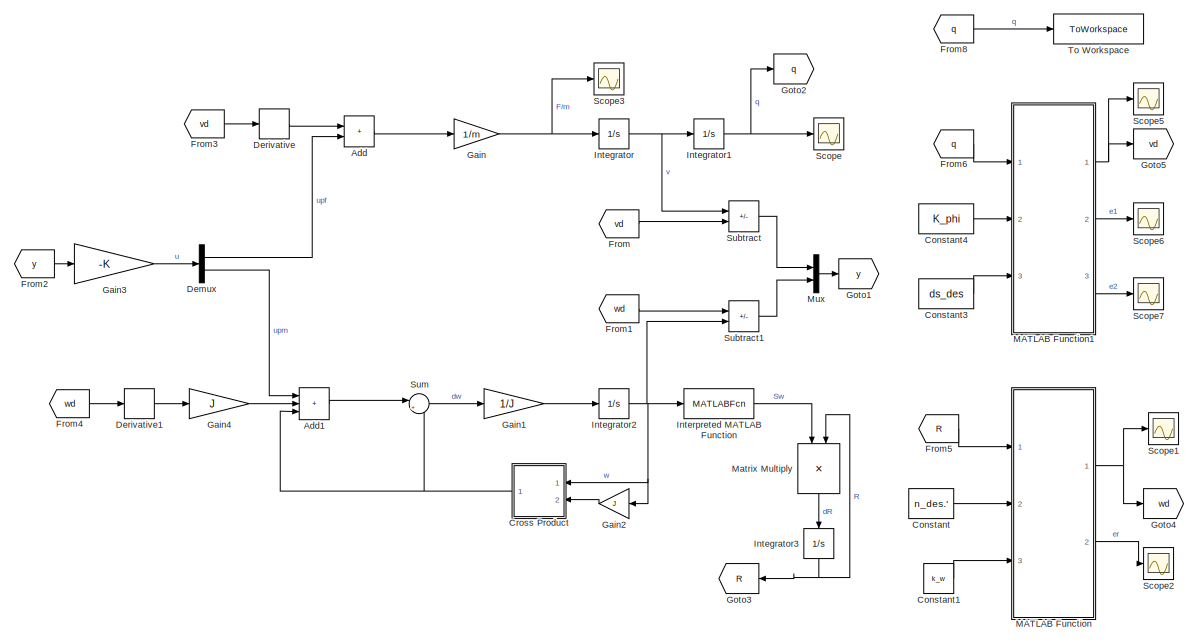
[diagram: root canvas - part 1/2, full width, top band]
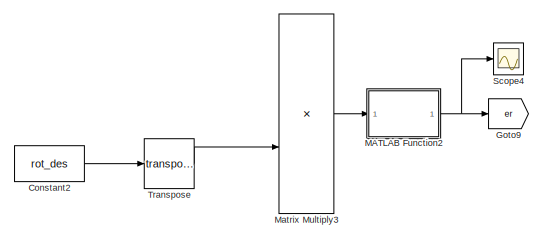
[diagram: root canvas - part 2/2, bottom center region]
MODEL slx_d8f19f1c8894
KIND model
CONFIG AbsTol = auto
CONFIG EnableMultiTasking = off
CONFIG FixedStep = auto
CONFIG MaxStep = auto
CONFIG MinStep = auto
CONFIG RelTol = 1e-3
CONFIG SampleTimeConstraint = Unconstrained
CONFIG SolverName = VariableStepAuto
CONFIG StartTime = 0.0
CONFIG StopTime = 1000
BLOCK [Sum] Add
  IconShape = rectangular
  Ports = [2, 1]
BLOCK [Sum] Add1
  IconShape = rectangular
  Inputs = +++
  Ports = [3, 1]
BLOCK [Constant] Constant
  Value = n_des.'
  VectorParams1D = off
BLOCK [Constant] Constant1
  Value = k_w
BLOCK [Constant] Constant2
  Commented = on
  Value = rot_des
  VectorParams1D = off
BLOCK [Constant] Constant3
  Value = ds_des
BLOCK [Constant] Constant4
  Value = K_phi
  VectorParams1D = off
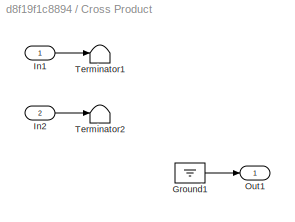
BLOCK [SubSystem] Cross Product
  Description = Replaced Block
  Ports = [2, 1]
BLOCK [Ground] Cross Product/Ground1
BLOCK [Inport] Cross Product/In1
BLOCK [Inport] Cross Product/In2
  Port = 2
BLOCK [Outport] Cross Product/Out1
BLOCK [Terminator] Cross Product/Terminator1
BLOCK [Terminator] Cross Product/Terminator2
BLOCK [Demux] Demux
  Outputs = 2
  Ports = [1, 2]
BLOCK [Derivative] Derivative
  CoefficientInTFapproximation = 10
BLOCK [Derivative] Derivative1
BLOCK [From] From
  GotoTag = vd
BLOCK [From] From1
  GotoTag = wd
BLOCK [From] From2
  GotoTag = y
BLOCK [From] From3
  GotoTag = vd
BLOCK [From] From4
  GotoTag = wd
BLOCK [From] From5
  GotoTag = R
BLOCK [From] From6
  GotoTag = q
BLOCK [From] From8
  GotoTag = q
BLOCK [Gain] Gain
  Gain = 1/m
BLOCK [Gain] Gain1
  Gain = 1/J
BLOCK [Gain] Gain2
  Gain = J
BLOCK [Gain] Gain3
  Gain = -K
  Multiplication = Matrix(K*u)
BLOCK [Gain] Gain4
  Gain = J
BLOCK [Goto] Goto1
  GotoTag = y
BLOCK [Goto] Goto2
  GotoTag = q
BLOCK [Goto] Goto3
  GotoTag = R
  NameLocation = top
BLOCK [Goto] Goto4
  GotoTag = wd
BLOCK [Goto] Goto5
  GotoTag = vd
BLOCK [Goto] Goto9
  Commented = on
  GotoTag = er
BLOCK [Integrator] Integrator
  InitialCondition = [0;0;0]
  Ports = [1, 1]
BLOCK [Integrator] Integrator1
  InitialCondition = pos_init
  Ports = [1, 1]
BLOCK [Integrator] Integrator2
  InitialCondition = [0;0;0]
  Ports = [1, 1]
BLOCK [Integrator] Integrator3
  InitialCondition = rot_init
  NameLocation = left
  Ports = [1, 1]
BLOCK [MATLABFcn] Interpreted MATLAB Function
  MATLABFcn = [0,u(3),-u(2); -u(3), 0, u(1); u(2),-u(1),0]
  Output1D = off
  Ports = [1, 1]
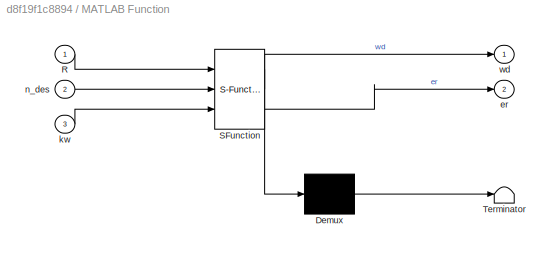
BLOCK [SubSystem] MATLAB Function
  ErrorFcn = Stateflow.Translate.translate
  PermitHierarchicalResolution = ExplicitOnly
  Ports = [3, 2]
  SFBlockType = MATLAB Function
  TreatAsAtomicUnit = on
BLOCK [Demux] MATLAB Function/ Demux 
  Outputs = 1
  Ports = [1, 1]
BLOCK [S-Function] MATLAB Function/ SFunction 
  EnableBusSupport = on
  FunctionName = sf_sfun
  PortCounts = [3 3]
  Ports = [3, 3]
  SFcnIsStateOwnerBlock = off
  SFunctionDeploymentMode = off
  Tag = Stateflow S-Function 2
BLOCK [Terminator] MATLAB Function/ Terminator 
BLOCK [Inport] MATLAB Function/R
BLOCK [Outport] MATLAB Function/er
  Port = 2
BLOCK [Inport] MATLAB Function/kw
  Port = 3
BLOCK [Inport] MATLAB Function/n_des
  Port = 2
BLOCK [Outport] MATLAB Function/wd
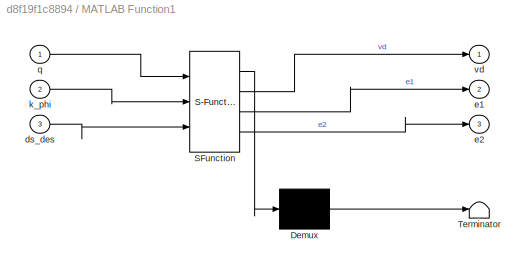
BLOCK [SubSystem] MATLAB Function1
  ErrorFcn = Stateflow.Translate.translate
  PermitHierarchicalResolution = ExplicitOnly
  Ports = [3, 3]
  SFBlockType = MATLAB Function
  TreatAsAtomicUnit = on
BLOCK [Demux] MATLAB Function1/ Demux 
  Outputs = 1
  Ports = [1, 1]
BLOCK [S-Function] MATLAB Function1/ SFunction 
  EnableBusSupport = on
  FunctionName = sf_sfun
  PortCounts = [3 4]
  Ports = [3, 4]
  SFcnIsStateOwnerBlock = off
  SFunctionDeploymentMode = off
  Tag = Stateflow S-Function 1
BLOCK [Terminator] MATLAB Function1/ Terminator 
BLOCK [Inport] MATLAB Function1/ds_des
  Port = 3
BLOCK [Outport] MATLAB Function1/e1
  Port = 2
BLOCK [Outport] MATLAB Function1/e2
  Port = 3
BLOCK [Inport] MATLAB Function1/k_phi
  Port = 2
BLOCK [Inport] MATLAB Function1/q
BLOCK [Outport] MATLAB Function1/vd
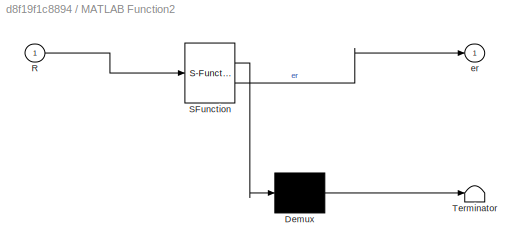
BLOCK [SubSystem] MATLAB Function2
  Commented = on
  ErrorFcn = Stateflow.Translate.translate
  PermitHierarchicalResolution = ExplicitOnly
  Ports = [1, 1]
  SFBlockType = MATLAB Function
  TreatAsAtomicUnit = on
BLOCK [Demux] MATLAB Function2/ Demux 
  Outputs = 1
  Ports = [1, 1]
BLOCK [S-Function] MATLAB Function2/ SFunction 
  EnableBusSupport = on
  FunctionName = sf_sfun
  PortCounts = [1 2]
  Ports = [1, 2]
  SFcnIsStateOwnerBlock = off
  SFunctionDeploymentMode = off
  Tag = Stateflow S-Function 3
BLOCK [Terminator] MATLAB Function2/ Terminator 
BLOCK [Inport] MATLAB Function2/R
BLOCK [Outport] MATLAB Function2/er
BLOCK [Product] Matrix Multiply
  Multiplication = Matrix(*)
  NameLocation = left
  Ports = [2, 1]
BLOCK [Product] Matrix Multiply3
  Commented = on
  Multiplication = Matrix(*)
  Ports = [2, 1]
BLOCK [Mux] Mux
  DisplayOption = bar
  Inputs = 2
  Ports = [2, 1]
BLOCK [Scope] Scope
  Floating = off
  NumInputPorts = 1
  Ports = [1]
  ScopeSpecificationString = Simulink.scopes.TimeScopeBlockCfg('CurrentConfiguration', extmgr.ConfigurationSet(extmgr.Configuration('Core','General UI',true),extmgr.Configuration('Core','Source UI',true),extmgr.Configuration('Sources','WiredSimulink',true),extmgr.Configuration('Visuals','Time Domain',true,'SerializedDisplays',{struct('MinYLimReal','-26.31648','MaxYLimReal','36.33131','YLabelReal','','MinYLimMag','0.00000','Ma...<+1368ch>
BLOCK [Scope] Scope1
  Floating = off
  NumInputPorts = 1
  Ports = [1]
  ScopeSpecificationString = Simulink.scopes.TimeScopeBlockCfg('CurrentConfiguration', extmgr.ConfigurationSet(extmgr.Configuration('Core','General UI',true),extmgr.Configuration('Core','Source UI',true),extmgr.Configuration('Sources','WiredSimulink',true,'DataLoggingVariableName','ScopeData1'),extmgr.Configuration('Visuals','Time Domain',true,'SerializedDisplays',{struct('MinYLimReal','-0.91506','MaxYLimReal','0.91506','YLab...<+1455ch>
BLOCK [Scope] Scope2
  Floating = off
  NumInputPorts = 1
  Ports = [1]
  ScopeSpecificationString = Simulink.scopes.TimeScopeBlockCfg('CurrentConfiguration', extmgr.ConfigurationSet(extmgr.Configuration('Core','General UI',true),extmgr.Configuration('Core','Source UI',true),extmgr.Configuration('Sources','WiredSimulink',true,'DataLoggingVariableName','ScopeData2'),extmgr.Configuration('Visuals','Time Domain',true,'SerializedDisplays',{struct('MinYLimReal','-0.04043','MaxYLimReal','0.4741','YLabe...<+1385ch>
BLOCK [Scope] Scope3
  Floating = off
  NumInputPorts = 1
  Ports = [1]
  ScopeSpecificationString = Simulink.scopes.TimeScopeBlockCfg('CurrentConfiguration', extmgr.ConfigurationSet(extmgr.Configuration('Core','General UI',true),extmgr.Configuration('Core','Source UI',true),extmgr.Configuration('Sources','WiredSimulink',true,'DataLoggingVariableName','ScopeData3'),extmgr.Configuration('Visuals','Time Domain',true,'SerializedDisplays',{struct('MinYLimReal','-3387.23953','MaxYLimReal','1763.81974'...<+1452ch>
BLOCK [Scope] Scope4
  Commented = on
  Floating = off
  NumInputPorts = 1
  Ports = [1]
  ScopeSpecificationString = Simulink.scopes.TimeScopeBlockCfg('CurrentConfiguration', extmgr.ConfigurationSet(extmgr.Configuration('Core','General UI',true),extmgr.Configuration('Core','Source UI',true),extmgr.Configuration('Sources','WiredSimulink',true,'DataLoggingVariableName','ScopeData4'),extmgr.Configuration('Visuals','Time Domain',true,'SerializedDisplays',{struct('MinYLimReal','-0.92171','MaxYLimReal','0.47612','YLab...<+1490ch>
BLOCK [Scope] Scope5
  Floating = off
  NumInputPorts = 1
  Ports = [1]
  ScopeSpecificationString = Simulink.scopes.TimeScopeBlockCfg('CurrentConfiguration', extmgr.ConfigurationSet(extmgr.Configuration('Core','General UI',true),extmgr.Configuration('Core','Source UI',true),extmgr.Configuration('Sources','WiredSimulink',true,'DataLoggingVariableName','ScopeData5'),extmgr.Configuration('Visuals','Time Domain',true,'SerializedDisplays',{struct('MinYLimReal','-6738.08515','MaxYLimReal','3465.96394'...<+1480ch>
BLOCK [Scope] Scope6
  Floating = off
  NumInputPorts = 1
  Ports = [1]
  ScopeSpecificationString = Simulink.scopes.TimeScopeBlockCfg('CurrentConfiguration', extmgr.ConfigurationSet(extmgr.Configuration('Core','General UI',true),extmgr.Configuration('Core','Source UI',true),extmgr.Configuration('Sources','WiredSimulink',true,'DataLoggingVariableName','ScopeData6'),extmgr.Configuration('Visuals','Time Domain',true,'SerializedDisplays',{struct('MinYLimReal','-334.03116','MaxYLimReal','166.28044','...<+1403ch>
BLOCK [Scope] Scope7
  Floating = off
  NumInputPorts = 1
  Ports = [1]
  ScopeSpecificationString = Simulink.scopes.TimeScopeBlockCfg('CurrentConfiguration', extmgr.ConfigurationSet(extmgr.Configuration('Core','General UI',true),extmgr.Configuration('Core','Source UI',true),extmgr.Configuration('Sources','WiredSimulink',true,'DataLoggingVariableName','ScopeData7'),extmgr.Configuration('Visuals','Time Domain',true,'SerializedDisplays',{struct('MinYLimReal','-7.92254','MaxYLimReal','24.07859','YLa...<+1393ch>
BLOCK [Sum] Subtract
  IconShape = rectangular
  Inputs = +-
  Ports = [2, 1]
BLOCK [Sum] Subtract1
  IconShape = rectangular
  Inputs = -+
  Ports = [2, 1]
BLOCK [Sum] Sum
  Inputs = |+-
  Ports = [2, 1]
BLOCK [ToWorkspace] To Workspace
  FixptAsFi = on
  MaxDataPoints = inf
  Ports = [1]
  SampleTime = -1
  SaveFormat = Timeseries
  VariableName = simout
BLOCK [Math] Transpose
  Operator = transpose
  Ports = [1, 1]
LINE Add1:1 -> Sum:1
LINE Add:1 -> Gain:1
LINE Constant1:1 -> MATLAB Function:3
LINE Constant2:1 -> Transpose:1
LINE Constant3:1 -> MATLAB Function1:3
LINE Constant4:1 -> MATLAB Function1:2
LINE Constant:1 -> MATLAB Function:2
LINE Cross Product/Ground1:1 -> Cross Product/Out1:1
LINE Cross Product/In1:1 -> Cross Product/Terminator1:1
LINE Cross Product/In2:1 -> Cross Product/Terminator2:1
NET Cross Product:1 -> Add1:3, Sum:2
LINE Demux:1 -> Add:2
LINE Demux:2 -> Add1:1
LINE Derivative1:1 -> Gain4:1
LINE Derivative:1 -> Add:1
LINE From1:1 -> Subtract1:1
LINE From2:1 -> Gain3:1
LINE From3:1 -> Derivative:1
LINE From4:1 -> Derivative1:1
LINE From5:1 -> MATLAB Function:1
LINE From6:1 -> MATLAB Function1:1
LINE From8:1 -> To Workspace:1
LINE From:1 -> Subtract:2
LINE Gain1:1 -> Integrator2:1
LINE Gain2:1 -> Cross Product:2
LINE Gain3:1 -> Demux:1
LINE Gain4:1 -> Add1:2
NET Gain:1 -> Integrator:1, Scope3:1
NET Integrator1:1 -> Goto2:1, Scope:1
NET Integrator2:1 -> Cross Product:1, Gain2:1, Interpreted MATLAB Function:1, Subtract1:2
NET Integrator3:1 -> Goto3:1, Matrix Multiply:2
NET Integrator:1 -> Integrator1:1, Subtract:1
LINE Interpreted MATLAB Function:1 -> Matrix Multiply:1
NET MATLAB Function1:1 -> Goto5:1, Scope5:1
LINE MATLAB Function1:2 -> Scope6:1
LINE MATLAB Function1:3 -> Scope7:1
NET MATLAB Function2:1 -> Goto9:1, Scope4:1
NET MATLAB Function:1 -> Goto4:1, Scope1:1
LINE MATLAB Function:2 -> Scope2:1
LINE Matrix Multiply3:1 -> MATLAB Function2:1
LINE Matrix Multiply:1 -> Integrator3:1
LINE Mux:1 -> Goto1:1
LINE Subtract1:1 -> Mux:2
LINE Subtract:1 -> Mux:1
LINE Sum:1 -> Gain1:1
LINE Transpose:1 -> Matrix Multiply3:2
note: NET lines group one-source signal fan-out (src -> all destinations, sorted); 1:1 wires keep LINE
CHART MATLAB Function1 states=1 transitions=1
  STATE_LABEL 'eML_blk_kernel()'
  STATE_LABEL 'SCRIPT:\nfunction [vd,e1,e2]  = fcn(q,k_phi,ds_des)\n\nx = q(1);\ny = q(2);\nz = q(3);\n\nu_phi = - k_phi * [x.*(x.^2+y.^2-4.0e+2).*2.0;y+z+y.*(x.^2+y.^2-4.0e+2).*2.0-1.0e+1;y+z-1.0e+1];\n\nJ = [[y.*1.0./sqrt(x.^2.*2.0+y.^2);x.*1.0./sqrt(x.^2+y.^2);0.0], ...\n     [-x.*1.0./sqrt(x.^2.*2.0+y.^2);y.*1.0./sqrt(x.^2+y.^2);sqrt(2.0)./2.0],...\n     [x.*1.0./sqrt(x.^2.*2.0+y.^2);0.0;sqrt(2.0)./2.0]];\n\nu_tau = (J^-...<+75ch>'
CHART MATLAB Function states=1 transitions=1
  STATE_LABEL 'eML_blk_kernel()'
  STATE_LABEL "SCRIPT:\nfunction [wd, er] = fcn(R, n_des, kw)\n\nn = rotm2axang(R);\nn = n(1:3)*n(4);\nn = n.';\n\n\nSc = [0,n_des(3),-n_des(2); -n_des(3), 0, n_des(1); n_des(2),-n_des(1),0];\n\nwd = -Sc * n * kw * (1-n.'*n_des);\ner = (1-n.'*n_des);\n% wd = 0"
CHART MATLAB Function2 states=1 transitions=1
  STATE_LABEL 'eML_blk_kernel()'
  STATE_LABEL "SCRIPT:\nfunction er = fcn(R)\n\nA = R - R.';\n\ne = [A(2,3); A(3,1); A(1,2)];\n\ner = e/2;\n"
CHART  states=0 transitions=0
CHART  states=0 transitions=0
CHART  states=0 transitions=0
